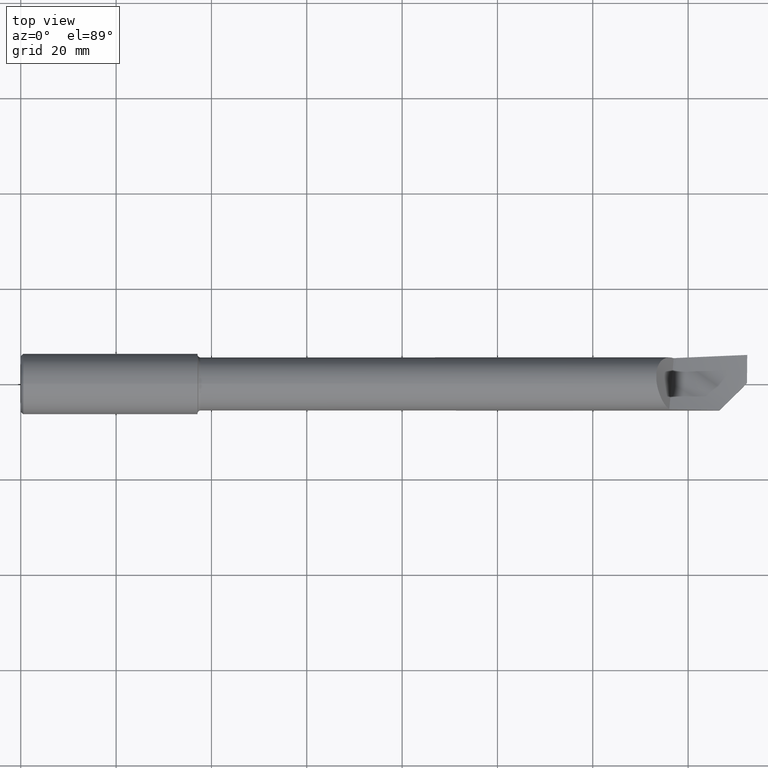
[diagram: clean part render]
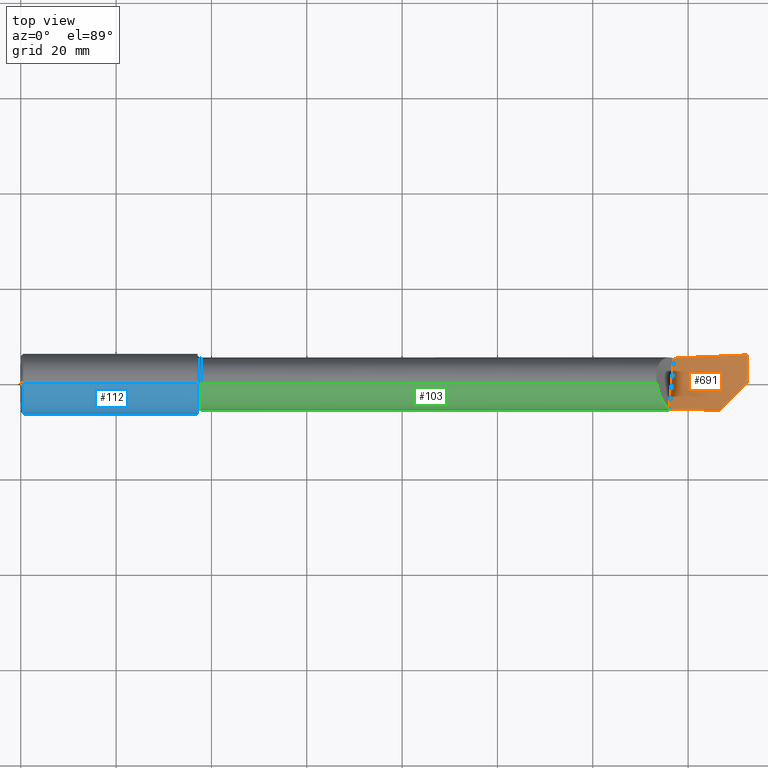
[diagram: same view with three faces highlighted in distinct colors, each labeled with its STEP entity id]
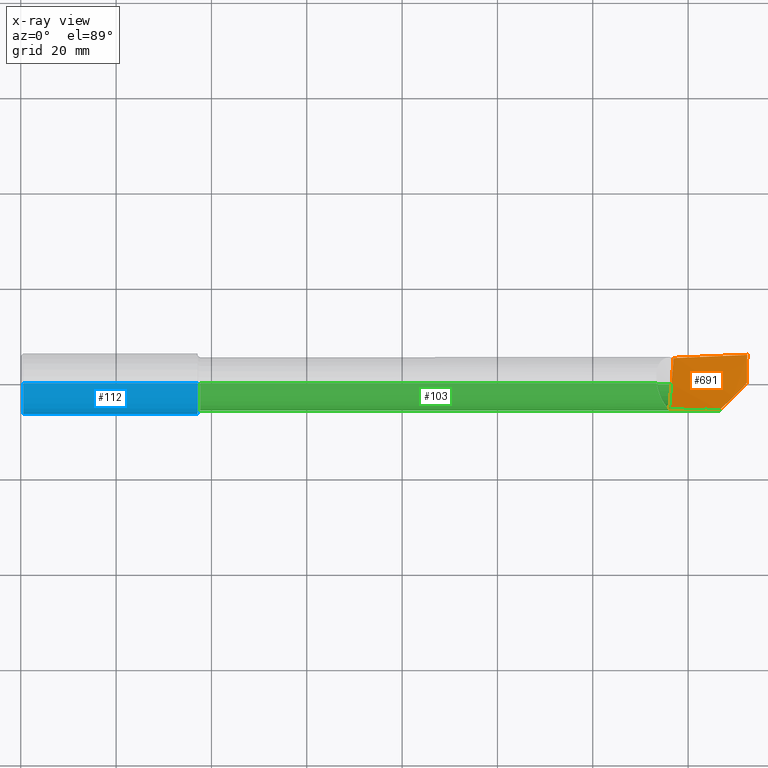
[diagram: x-ray of the same camera — body ghosted, the three highlighted faces saturated]
A machine part, top view with three faces highlighted in distinct colors.
The next image is the same camera in x-ray (body ghosted, the three faces saturated) — at least one of them is partly hidden behind the body in this view.
Their STEP definitions:

[orange] entity #691 — the highlighted face is a freeform B-spline surface patch.
#4 = B_SPLINE_CURVE_WITH_KNOTS ( 'NONE', 3,
 ( #550, #271, #602, #418 ),
 .UNSPECIFIED., .F., .F.,
 ( 4, 4 ),
 ( 0.000000000000000000, 1.000000000000000000 ),
 .UNSPECIFIED. ) ;
#22 = CARTESIAN_POINT ( 'NONE',  ( 5.038461538461540101, 0.1282380153811019941, -0.06570616055808793654 ) ) ;
#67 = ORIENTED_EDGE ( 'NONE', *, *, #404, .F. ) ;
#70 = CARTESIAN_POINT ( 'NONE',  ( 6.000000000000000000, -0.1427725359348056000, -0.004432535825742341291 ) ) ;
#72 = ORIENTED_EDGE ( 'NONE', *, *, #488, .F. ) ;
#74 = CARTESIAN_POINT ( 'NONE',  ( 6.000000000000000888, 0.2402499999999999636, 0.000000000000000000 ) ) ;
#87 = FACE_OUTER_BOUND ( 'NONE', #300, .T. ) ;
#94 = CARTESIAN_POINT ( 'NONE',  ( 5.356559098504063421, -0.2088777642239236787, 0.06906576061805669298 ) ) ;
#110 = CARTESIAN_POINT ( 'NONE',  ( 4.717948717948720727, 0.3831985670997781201, -0.1862012283307211968 ) ) ;
#141 = CARTESIAN_POINT ( 'NONE',  ( 5.997941307501979402, 0.009589154693349864408, -0.0003725554249013883251 ) ) ;
#145 = CARTESIAN_POINT ( 'NONE',  ( 5.357725844419114480, -0.2089080893730916877, 0.06897406050240388609 ) ) ;
#179 = EDGE_CURVE ( 'NONE', #738, #471, #246, .T. ) ;
#184 = CARTESIAN_POINT ( 'NONE',  ( 5.392944745247168825, 0.2140968924730454748, -0.05062134562993383935 ) ) ;
#190 = CARTESIAN_POINT ( 'NONE',  ( 6.000000000000000888, -0.4232169687476833864, 0.04721891282440422027 ) ) ;
#192 = ORIENTED_EDGE ( 'NONE', *, *, #648, .T. ) ;
#195 = CARTESIAN_POINT ( 'NONE',  ( 5.612381827555388725, 0.2257843348541586359, -0.03415235492858138128 ) ) ;
#196 = CARTESIAN_POINT ( 'NONE',  ( 5.392944745247168825, 0.2140968924730454748, -0.05062134562993383935 ) ) ;
#201 = CARTESIAN_POINT ( 'NONE',  ( 5.358974358974360364, -0.3996188273119117840, 0.1471292670482277631 ) ) ;
#206 = CARTESIAN_POINT ( 'NONE',  ( 5.679487179487181514, -0.4174835547069452035, 0.09860675650306138795 ) ) ;
#208 = CARTESIAN_POINT ( 'NONE',  ( 5.410000000000001918, 0.2144189151190963594, -0.04923950486296321122 ) ) ;
#246 = B_SPLINE_CURVE_WITH_KNOTS ( 'NONE', 3,
 ( #652, #710, #195, #478 ),
 .UNSPECIFIED., .F., .F.,
 ( 4, 4 ),
 ( 1.235384741098576477E-19, 0.01483563987091332179 ),
 .UNSPECIFIED. ) ;
#248 = CARTESIAN_POINT ( 'NONE',  ( 5.358974358974360364, -0.1396846007746824214, 0.02986396988880485326 ) ) ;
#258 = CARTESIAN_POINT ( 'NONE',  ( 5.679487179487179738, -0.1433107432254709379, 0.01290318863713321371 ) ) ;
#267 = CARTESIAN_POINT ( 'NONE',  ( 5.846075425691751981, -0.1422767271168796921, 0.01425986872581068779 ) ) ;
#271 = CARTESIAN_POINT ( 'NONE',  ( 5.380960247964670984, 0.07009182744065016457, -0.02311703390389483956 ) ) ;
#274 = CARTESIAN_POINT ( 'NONE',  ( 5.418486830548875588, 0.2160475044874685668, -0.04882782362294692258 ) ) ;
#300 = EDGE_LOOP ( 'NONE', ( #67, #593, #72, #533, #192, #685, #322 ) ) ;
#303 = CARTESIAN_POINT ( 'NONE',  ( 5.410000000000001918, 0.2144189151190963594, -0.04923950486296321122 ) ) ;
#306 = CARTESIAN_POINT ( 'NONE',  ( 5.564429700643780841, -0.2143015012764733496, 0.05261254719292928622 ) ) ;
#318 = CARTESIAN_POINT ( 'NONE',  ( 5.358974358974360364, 0.4166243838240432651, -0.08908513940287006438 ) ) ;
#322 = ORIENTED_EDGE ( 'NONE', *, *, #346, .F. ) ;
#342 = VERTEX_POINT ( 'NONE', #208 ) ;
#343 = CARTESIAN_POINT ( 'NONE',  ( 5.997941307501979402, 0.009589154693349864408, -0.0003725554249013883251 ) ) ;
#346 = EDGE_CURVE ( 'NONE', #745, #407, #699, .T. ) ;
#355 = EDGE_CURVE ( 'NONE', #407, #383, #733, .T. ) ;
#357 = CARTESIAN_POINT ( 'NONE',  ( 4.717948717948720727, -0.3527962921881071523, 0.2384890030643342096 ) ) ;
#367 = CARTESIAN_POINT ( 'NONE',  ( 4.717948717948720727, -0.1284787043503996806, 0.06242489022452848979 ) ) ;
#373 = CARTESIAN_POINT ( 'NONE',  ( 5.679487179487181514, 0.4274412781259713245, -0.03849778046020245481 ) ) ;
#383 = VERTEX_POINT ( 'NONE', #433 ) ;
#387 =( BOUNDED_CURVE ( )  B_SPLINE_CURVE ( 2, ( #196, #727, #303 ),
 .UNSPECIFIED., .F., .T. ) 
 B_SPLINE_CURVE_WITH_KNOTS ( ( 3, 3 ),
 ( 0.5266614230579070854, 0.5400257304258038182 ),
 .UNSPECIFIED. ) 
 CURVE ( )  GEOMETRIC_REPRESENTATION_ITEM ( )  RATIONAL_B_SPLINE_CURVE ( ( 0.9955652346528230945, 0.9953917806560829140, 0.9952287059344252507 ) ) 
 REPRESENTATION_ITEM ( '' )  );
#404 = EDGE_CURVE ( 'NONE', #738, #745, #641, .T. ) ;
#407 = VERTEX_POINT ( 'NONE', #444 ) ;
#418 = CARTESIAN_POINT ( 'NONE',  ( 5.356559098504063421, -0.2088777642239236787, 0.06906576061805669298 ) ) ;
#426 = CARTESIAN_POINT ( 'NONE',  ( 5.998256711176780165, 0.08645143747529157596, -0.003266647090703719402 ) ) ;
#433 = CARTESIAN_POINT ( 'NONE',  ( 5.356559098504063421, -0.2088777642239236787, 0.06906576061805669298 ) ) ;
#443 =( BOUNDED_SURFACE ( )  B_SPLINE_SURFACE ( 3, 2, ( 
 ( #190, #206, #201, #595, #357 ),
 ( #70, #258, #248, #485, #367 ),
 ( #555, #715, #607, #22, #497 ),
 ( #671, #373, #318, #559, #110 ) ),
 .UNSPECIFIED., .F., .F., .T. ) 
 B_SPLINE_SURFACE_WITH_KNOTS ( ( 4, 4 ),
 ( 3, 2, 3 ),
 ( 0.000000000000000000, 1.000000000000000000 ),
 ( 0.000000000000000000, 0.5000000000000000000, 1.000000000000000000 ),
 .UNSPECIFIED. ) 
 GEOMETRIC_REPRESENTATION_ITEM ( )  RATIONAL_B_SPLINE_SURFACE ( (
 ( 1.000000000000000000, 0.9927088740980539727, 1.000000000000000000, 0.9927088740980539727, 1.000000000000000000),
 ( 0.9932804858608129672, 0.9860383527824556626, 0.9932804858608129672, 0.9860383527824556626, 0.9932804858608129672),
 ( 0.9932804858608129672, 0.9860383527824556626, 0.9932804858608129672, 0.9860383527824556626, 0.9932804858608129672),
 ( 1.000000000000000000, 0.9927088740980539727, 1.000000000000000000, 0.9927088740980539727, 1.000000000000000000) ) ) 
 REPRESENTATION_ITEM ( '' )  SURFACE ( )  );
#444 = CARTESIAN_POINT ( 'NONE',  ( 5.771270714435558169, -0.2170814383730695907, 0.03571623039850650716 ) ) ;
#471 = VERTEX_POINT ( 'NONE', #482 ) ;
#478 = CARTESIAN_POINT ( 'NONE',  ( 5.418486830548875588, 0.2160475044874685668, -0.04882782362294692258 ) ) ;
#482 = CARTESIAN_POINT ( 'NONE',  ( 5.418486830548875588, 0.2160475044874685668, -0.04882782362294692258 ) ) ;
#485 = CARTESIAN_POINT ( 'NONE',  ( 5.038461538461540101, -0.1360584583238938217, 0.04682475114047649628 ) ) ;
#487 = CARTESIAN_POINT ( 'NONE',  ( 5.998938641188132692, 0.1633380998407390761, -0.003177467661418153112 ) ) ;
#488 = EDGE_CURVE ( 'NONE', #342, #471, #532, .T. ) ;
#497 = CARTESIAN_POINT ( 'NONE',  ( 4.717948717948720727, 0.1185125768182977157, -0.08009619267214614091 ) ) ;
#505 = CARTESIAN_POINT ( 'NONE',  ( 5.771270714435558169, -0.2170814383730695907, 0.03571623039850650716 ) ) ;
#522 = CARTESIAN_POINT ( 'NONE',  ( 5.412829028078361304, 0.2149618471159617794, -0.04910401580184040049 ) ) ;
#532 = B_SPLINE_CURVE_WITH_KNOTS ( 'NONE', 3,
 ( #742, #522, #757, #274 ),
 .UNSPECIFIED., .F., .F.,
 ( 4, 4 ),
 ( 0.000000000000000000, 0.0002197412204929500385 ),
 .UNSPECIFIED. ) ;
#533 = ORIENTED_EDGE ( 'NONE', *, *, #623, .F. ) ;
#550 = CARTESIAN_POINT ( 'NONE',  ( 5.392944745247168825, 0.2140968924730454748, -0.05062134562993383935 ) ) ;
#553 = CARTESIAN_POINT ( 'NONE',  ( 5.771270714435558169, -0.2170814383730695907, 0.03571623039850650716 ) ) ;
#555 = CARTESIAN_POINT ( 'NONE',  ( 6.000000000000000000, 0.1421602319866792363, -0.01584611580735217559 ) ) ;
#559 = CARTESIAN_POINT ( 'NONE',  ( 5.038461538461542766, 0.4058074895221152611, -0.1396724983455376601 ) ) ;
#570 = CARTESIAN_POINT ( 'NONE',  ( 5.358974358974359475, -0.2089406661879938953, 0.06887523512059523512 ) ) ;
#579 = CARTESIAN_POINT ( 'NONE',  ( 6.000000000000000888, 0.2402499999999999636, 0.000000000000000000 ) ) ;
#590 = VERTEX_POINT ( 'NONE', #184 ) ;
#593 = ORIENTED_EDGE ( 'NONE', *, *, #179, .T. ) ;
#595 = CARTESIAN_POINT ( 'NONE',  ( 5.038461538461542766, -0.3817540999168784754, 0.1956517775933941383 ) ) ;
#602 = CARTESIAN_POINT ( 'NONE',  ( 5.368992473848769542, -0.07181561011661122262, 0.01702505518877546822 ) ) ;
#607 = CARTESIAN_POINT ( 'NONE',  ( 5.358974358974360364, 0.1342370902800414656, -0.04940682683429966499 ) ) ;
#623 = EDGE_CURVE ( 'NONE', #590, #342, #387, .T. ) ;
#641 = B_SPLINE_CURVE_WITH_KNOTS ( 'NONE', 3,
 ( #74, #487, #426, #141 ),
 .UNSPECIFIED., .F., .F.,
 ( 4, 4 ),
 ( 3.946659672217948877E-16, 0.005858684638792336155 ),
 .UNSPECIFIED. ) ;
#648 = EDGE_CURVE ( 'NONE', #590, #383, #4, .T. ) ;
#652 = CARTESIAN_POINT ( 'NONE',  ( 6.000000000000000888, 0.2402499999999999636, 0.000000000000000000 ) ) ;
#658 = CARTESIAN_POINT ( 'NONE',  ( 5.921631811082999519, -0.06672034172563119647, 0.002224270572585796465 ) ) ;
#671 = CARTESIAN_POINT ( 'NONE',  ( 6.000000000000000888, 0.4258375057284731757, 0.01320825401576949422 ) ) ;
#685 = ORIENTED_EDGE ( 'NONE', *, *, #355, .F. ) ;
#691 = ADVANCED_FACE ( 'NONE', ( #87 ), #443, .T. ) ;
#699 = B_SPLINE_CURVE_WITH_KNOTS ( 'NONE', 3,
 ( #724, #658, #267, #505 ),
 .UNSPECIFIED., .F., .F.,
 ( 4, 4 ),
 ( 7.367693421349575105E-05, 0.008267352743947888050 ),
 .UNSPECIFIED. ) ;
#710 = CARTESIAN_POINT ( 'NONE',  ( 5.806231657992949380, 0.2339654237526884728, -0.01788766252031758278 ) ) ;
#715 = CARTESIAN_POINT ( 'NONE',  ( 5.679487179487179738, 0.1402361651789809094, -0.03310749311051140731 ) ) ;
#724 = CARTESIAN_POINT ( 'NONE',  ( 5.997941307501979402, 0.009589154693349864408, -0.0003725554249013883251 ) ) ;
#727 = CARTESIAN_POINT ( 'NONE',  ( 5.401469481609320944, 0.2142601318164513158, -0.04993094446185701585 ) ) ;
#733 =( BOUNDED_CURVE ( )  B_SPLINE_CURVE ( 2, ( #553, #306, #570, #145, #94 ),
 .UNSPECIFIED., .F., .T. ) 
 B_SPLINE_CURVE_WITH_KNOTS ( ( 3, 2, 3 ),
 ( 0.1786485734947638737, 0.5000000000000000000, 0.5019619316750385529 ),
 .UNSPECIFIED. ) 
 CURVE ( )  GEOMETRIC_REPRESENTATION_ITEM ( )  RATIONAL_B_SPLINE_CURVE ( ( 0.9929648280793842430, 0.9916323561610862480, 0.9963010501997406898, 0.9962725466427000409, 0.9962442667737849700 ) ) 
 REPRESENTATION_ITEM ( '' )  );
#738 = VERTEX_POINT ( 'NONE', #579 ) ;
#742 = CARTESIAN_POINT ( 'NONE',  ( 5.410000000000001918, 0.2144189151190963594, -0.04923950486296321122 ) ) ;
#745 = VERTEX_POINT ( 'NONE', #343 ) ;
#757 = CARTESIAN_POINT ( 'NONE',  ( 5.415657971079504307, 0.2155047129925782845, -0.04896678893848467606 ) ) ;

[blue] entity #112 — the highlighted cylindrical surface (edge-blend (fillet) strip) has radius 6.3462 mm, axis along (-1, -0, -0).
#15 = DIRECTION ( 'NONE',  ( -1.000000000000000000, -0.000000000000000000, -0.000000000000000000 ) ) ;
#23 = DIRECTION ( 'NONE',  ( -1.000000000000000000, -0.000000000000000000, -0.000000000000000000 ) ) ;
#29 = CYLINDRICAL_SURFACE ( 'NONE', #643, 0.2498499999999999888 ) ;
#56 = VECTOR ( 'NONE', #131, 39.37007874015748143 ) ;
#100 = ORIENTED_EDGE ( 'NONE', *, *, #642, .F. ) ;
#102 = CARTESIAN_POINT ( 'NONE',  ( 1.459525038226270333, 0.000000000000000000, 0.2498499999999999888 ) ) ;
#108 = CARTESIAN_POINT ( 'NONE',  ( 1.459525038226270333, 3.059780027669661931E-17, -0.2498499999999999888 ) ) ;
#112 = ADVANCED_FACE ( 'NONE', ( #556 ), #29, .T. ) ;
#124 = EDGE_CURVE ( 'NONE', #705, #391, #148, .T. ) ;
#131 = DIRECTION ( 'NONE',  ( -1.000000000000000000, -0.000000000000000000, -0.000000000000000000 ) ) ;
#134 = EDGE_LOOP ( 'NONE', ( #577, #755, #495, #100 ) ) ;
#147 = LINE ( 'NONE', #441, #56 ) ;
#148 = LINE ( 'NONE', #620, #213 ) ;
#156 = CIRCLE ( 'NONE', #185, 0.2498499999999999888 ) ;
#185 = AXIS2_PLACEMENT_3D ( 'NONE', #676, #15, #721 ) ;
#207 = CARTESIAN_POINT ( 'NONE',  ( 0.000000000000000000, 0.000000000000000000, 0.000000000000000000 ) ) ;
#213 = VECTOR ( 'NONE', #499, 39.37007874015748143 ) ;
#249 = CIRCLE ( 'NONE', #386, 0.2498499999999999888 ) ;
#297 = VERTEX_POINT ( 'NONE', #578 ) ;
#324 = DIRECTION ( 'NONE',  ( 1.000000000000000000, 0.000000000000000000, 0.000000000000000000 ) ) ;
#375 = DIRECTION ( 'NONE',  ( 0.000000000000000000, 0.000000000000000000, 1.000000000000000000 ) ) ;
#386 = AXIS2_PLACEMENT_3D ( 'NONE', #541, #324, #568 ) ;
#391 = VERTEX_POINT ( 'NONE', #600 ) ;
#441 = CARTESIAN_POINT ( 'NONE',  ( 0.000000000000000000, 3.059780027669661931E-17, -0.2498499999999999888 ) ) ;
#495 = ORIENTED_EDGE ( 'NONE', *, *, #124, .T. ) ;
#499 = DIRECTION ( 'NONE',  ( -1.000000000000000000, -0.000000000000000000, -0.000000000000000000 ) ) ;
#529 = VERTEX_POINT ( 'NONE', #108 ) ;
#541 = CARTESIAN_POINT ( 'NONE',  ( 1.459525038226270333, 0.000000000000000000, 0.000000000000000000 ) ) ;
#556 = FACE_OUTER_BOUND ( 'NONE', #134, .T. ) ;
#568 = DIRECTION ( 'NONE',  ( 0.000000000000000000, 0.000000000000000000, -1.000000000000000000 ) ) ;
#577 = ORIENTED_EDGE ( 'NONE', *, *, #632, .F. ) ;
#578 = CARTESIAN_POINT ( 'NONE',  ( 0.02000000000000000042, 3.059780027669661931E-17, -0.2498499999999999888 ) ) ;
#600 = CARTESIAN_POINT ( 'NONE',  ( 0.02000000000000000042, 0.000000000000000000, 0.2498499999999999888 ) ) ;
#620 = CARTESIAN_POINT ( 'NONE',  ( 0.000000000000000000, 0.000000000000000000, 0.2498499999999999888 ) ) ;
#632 = EDGE_CURVE ( 'NONE', #529, #297, #147, .T. ) ;
#642 = EDGE_CURVE ( 'NONE', #297, #391, #156, .T. ) ;
#643 = AXIS2_PLACEMENT_3D ( 'NONE', #207, #23, #375 ) ;
#644 = EDGE_CURVE ( 'NONE', #705, #529, #249, .T. ) ;
#676 = CARTESIAN_POINT ( 'NONE',  ( 0.02000000000000000042, 0.000000000000000000, 0.000000000000000000 ) ) ;
#705 = VERTEX_POINT ( 'NONE', #102 ) ;
#721 = DIRECTION ( 'NONE',  ( 0.000000000000000000, 0.000000000000000000, 1.000000000000000000 ) ) ;
#755 = ORIENTED_EDGE ( 'NONE', *, *, #644, .F. ) ;

[green] entity #103 — the highlighted cylindrical surface (edge-blend (fillet) strip) has radius 5.588 mm, axis along (-1, -0, -0).
#6 = ORIENTED_EDGE ( 'NONE', *, *, #374, .T. ) ;
#9 = CARTESIAN_POINT ( 'NONE',  ( 5.283226719027450891, -0.1059187799789718248, 0.1929277633858645646 ) ) ;
#10 = ORIENTED_EDGE ( 'NONE', *, *, #344, .F. ) ;
#11 = CARTESIAN_POINT ( 'NONE',  ( 5.970822649411937633, -0.01752950339669020682, -0.2193005164395777362 ) ) ;
#14 = CARTESIAN_POINT ( 'NONE',  ( 5.256435488265876366, -0.02101578052564987212, 0.2199999835917510471 ) ) ;
#25 = DIRECTION ( 'NONE',  ( 0.000000000000000000, 0.000000000000000000, 1.000000000000000000 ) ) ;
#26 = CARTESIAN_POINT ( 'NONE',  ( 5.293395547304614368, -0.1282223768002896391, 0.1787856457334581206 ) ) ;
#34 = DIRECTION ( 'NONE',  ( -1.000000000000000000, -0.000000000000000000, -0.000000000000000000 ) ) ;
#35 = CARTESIAN_POINT ( 'NONE',  ( 5.771270714435558169, -0.2170814383730695907, 0.03571623039850650716 ) ) ;
#54 =( BOUNDED_CURVE ( )  B_SPLINE_CURVE ( 3, ( #35, #256, #669, #187 ),
 .UNSPECIFIED., .F., .T. ) 
 B_SPLINE_CURVE_WITH_KNOTS ( ( 4, 4 ),
 ( 6.120117067556848589, 7.774217519258906250 ),
 .UNSPECIFIED. ) 
 CURVE ( )  GEOMETRIC_REPRESENTATION_ITEM ( )  RATIONAL_B_SPLINE_CURVE ( ( 1.000000000000000000, 0.7846997011302692115, 0.7846997011302692115, 1.000000000000000000 ) ) 
 REPRESENTATION_ITEM ( '' )  );
#60 = VERTEX_POINT ( 'NONE', #212 ) ;
#69 = DIRECTION ( 'NONE',  ( -1.000000000000000000, -0.000000000000000000, -0.000000000000000000 ) ) ;
#79 = CARTESIAN_POINT ( 'NONE',  ( 5.533631329113467778, -0.007501773097099858310, -0.2200000000000000011 ) ) ;
#94 = CARTESIAN_POINT ( 'NONE',  ( 5.356559098504063421, -0.2088777642239236787, 0.06906576061805669298 ) ) ;
#103 = ADVANCED_FACE ( 'NONE', ( #677 ), #667, .T. ) ;
#107 = CIRCLE ( 'NONE', #498, 0.2200000000000000011 ) ;
#120 = CARTESIAN_POINT ( 'NONE',  ( 5.272414265991219651, -0.07762841386096502871, 0.2061942163186600840 ) ) ;
#125 = CARTESIAN_POINT ( 'NONE',  ( 5.301763750540529507, -0.1449087477148439662, 0.1665523849273789492 ) ) ;
#129 = CARTESIAN_POINT ( 'NONE',  ( 1.484525038226270244, 0.000000000000000000, 0.000000000000000000 ) ) ;
#130 = CARTESIAN_POINT ( 'NONE',  ( 5.253048836201133831, -1.183062825525345383E-06, 0.2200124226379089887 ) ) ;
#138 = CARTESIAN_POINT ( 'NONE',  ( 5.292376002346411035, -0.1261431576479110639, 0.1802597226350352022 ) ) ;
#139 = CARTESIAN_POINT ( 'NONE',  ( 0.000000000000000000, 0.000000000000000000, 0.000000000000000000 ) ) ;
#145 = CARTESIAN_POINT ( 'NONE',  ( 5.357725844419114480, -0.2089080893730916877, 0.06897406050240388609 ) ) ;
#171 = CARTESIAN_POINT ( 'NONE',  ( 5.410000000000000142, 0.000000000000000000, -0.2200000000000000566 ) ) ;
#178 = ORIENTED_EDGE ( 'NONE', *, *, #362, .F. ) ;
#181 = B_SPLINE_CURVE_WITH_KNOTS ( 'NONE', 3,
 ( #664, #365, #79, #376 ),
 .UNSPECIFIED., .F., .F.,
 ( 4, 4 ),
 ( 0.000000000000000000, 0.004744245821424695857 ),
 .UNSPECIFIED. ) ;
#187 = CARTESIAN_POINT ( 'NONE',  ( 5.970822649411937633, -0.01752950339669020682, -0.2193005164395777362 ) ) ;
#194 = DIRECTION ( 'NONE',  ( -1.000000000000000000, -0.000000000000000000, -0.000000000000000000 ) ) ;
#209 = ORIENTED_EDGE ( 'NONE', *, *, #583, .T. ) ;
#212 = CARTESIAN_POINT ( 'NONE',  ( 5.970889738018302140, 0.000000000000000000, -0.2200000000000000566 ) ) ;
#215 = ORIENTED_EDGE ( 'NONE', *, *, #355, .T. ) ;
#229 = CARTESIAN_POINT ( 'NONE',  ( 5.595439364795532278, 2.134256245050205639E-18, -0.2200000000000000566 ) ) ;
#233 = EDGE_CURVE ( 'NONE', #383, #732, #419, .T. ) ;
#239 = EDGE_CURVE ( 'NONE', #732, #519, #412, .T. ) ;
#243 = CARTESIAN_POINT ( 'NONE',  ( 5.970816303086416532, -0.01169718663061289528, -0.2197667151436271948 ) ) ;
#247 = CARTESIAN_POINT ( 'NONE',  ( 5.970889738018302140, 0.000000000000000000, -0.2200000000000000566 ) ) ;
#250 = ORIENTED_EDGE ( 'NONE', *, *, #233, .T. ) ;
#256 = CARTESIAN_POINT ( 'NONE',  ( 5.748939529771278423, -0.2394126230373500308, -0.1000115783150166415 ) ) ;
#259 =( BOUNDED_CURVE ( )  B_SPLINE_CURVE ( 3, ( #11, #243, #302, #247 ),
 .UNSPECIFIED., .F., .F. ) 
 B_SPLINE_CURVE_WITH_KNOTS ( ( 4, 4 ),
 ( 6.274373815428443635, 6.354137930144020174 ),
 .UNSPECIFIED. ) 
 CURVE ( )  GEOMETRIC_REPRESENTATION_ITEM ( )  RATIONAL_B_SPLINE_CURVE ( ( 1.000000000000000000, 0.9994698774393541152, 0.9994698774393541152, 1.000000000000000000 ) ) 
 REPRESENTATION_ITEM ( '' )  );
#261 = VECTOR ( 'NONE', #713, 39.37007874015748143 ) ;
#262 = CARTESIAN_POINT ( 'NONE',  ( 1.484525038226270244, 2.694222958124177561E-17, -0.2200000000000000566 ) ) ;
#272 = EDGE_CURVE ( 'NONE', #617, #60, #259, .T. ) ;
#299 = CARTESIAN_POINT ( 'NONE',  ( 5.291026367974281719, -0.1233195885780081907, 0.1821875986796213653 ) ) ;
#302 = CARTESIAN_POINT ( 'NONE',  ( 5.970838677816553641, -0.005850919593664221513, -0.2200000000000000011 ) ) ;
#306 = CARTESIAN_POINT ( 'NONE',  ( 5.564429700643780841, -0.2143015012764733496, 0.05261254719292928622 ) ) ;
#312 = CARTESIAN_POINT ( 'NONE',  ( 5.286194494552781009, -0.1128910208792994335, 0.1889741111404006357 ) ) ;
#315 = DIRECTION ( 'NONE',  ( -1.000000000000000000, -0.000000000000000000, -0.000000000000000000 ) ) ;
#344 = EDGE_CURVE ( 'NONE', #456, #396, #673, .T. ) ;
#353 = CARTESIAN_POINT ( 'NONE',  ( 0.000000000000000000, 0.000000000000000000, 0.2200000000000000566 ) ) ;
#355 = EDGE_CURVE ( 'NONE', #407, #383, #733, .T. ) ;
#356 = CARTESIAN_POINT ( 'NONE',  ( 5.291057892820146158, -0.1233858508182268526, 0.1821426667538900979 ) ) ;
#359 = DIRECTION ( 'NONE',  ( 0.000000000000000000, 0.000000000000000000, 1.000000000000000000 ) ) ;
#362 = EDGE_CURVE ( 'NONE', #396, #519, #528, .T. ) ;
#365 = CARTESIAN_POINT ( 'NONE',  ( 5.471819322562021526, -0.01495104440659961002, -0.2196163581689149769 ) ) ;
#366 = CARTESIAN_POINT ( 'NONE',  ( 5.276456940788357031, -0.08905058601311724442, 0.2015679351482878578 ) ) ;
#374 = EDGE_CURVE ( 'NONE', #456, #571, #107, .T. ) ;
#376 = CARTESIAN_POINT ( 'NONE',  ( 5.595439364795532278, 2.134256245050205639E-18, -0.2200000000000000566 ) ) ;
#379 = VECTOR ( 'NONE', #69, 39.37007874015748143 ) ;
#383 = VERTEX_POINT ( 'NONE', #433 ) ;
#392 = ORIENTED_EDGE ( 'NONE', *, *, #402, .F. ) ;
#396 = VERTEX_POINT ( 'NONE', #262 ) ;
#399 = AXIS2_PLACEMENT_3D ( 'NONE', #129, #194, #359 ) ;
#402 = EDGE_CURVE ( 'NONE', #407, #617, #54, .T. ) ;
#407 = VERTEX_POINT ( 'NONE', #444 ) ;
#412 = LINE ( 'NONE', #353, #379 ) ;
#414 = EDGE_CURVE ( 'NONE', #571, #582, #181, .T. ) ;
#419 = B_SPLINE_CURVE_WITH_KNOTS ( 'NONE', 3,
 ( #655, #435, #670, #554, #125, #26, #138, #540, #531, #356, #299, #594, #535, #312, #9, #366, #120, #475, #14, #130 ),
 .UNSPECIFIED., .F., .F.,
 ( 4, 2, 2, 1, 1, 2, 2, 1, 1, 2, 2, 4 ),
 ( 0.000000000000000000, 0.2319181769986998209, 0.4638363539973996419, 0.4928261261222369738, 0.4964498476378415015, 0.4982617083956438209, 0.5000735691534462513, 0.5073210121846650766, 0.5218158982471060581, 0.5797954424968704279, 0.6957545309964027203, 0.9276727079954699695 ),
 .UNSPECIFIED. ) ;
#433 = CARTESIAN_POINT ( 'NONE',  ( 5.356559098504063421, -0.2088777642239236787, 0.06906576061805669298 ) ) ;
#435 = CARTESIAN_POINT ( 'NONE',  ( 5.343568907379043331, -0.2004185357093110631, 0.09466616758537328702 ) ) ;
#444 = CARTESIAN_POINT ( 'NONE',  ( 5.771270714435558169, -0.2170814383730695907, 0.03571623039850650716 ) ) ;
#456 = VERTEX_POINT ( 'NONE', #678 ) ;
#465 = LINE ( 'NONE', #171, #527 ) ;
#475 = CARTESIAN_POINT ( 'NONE',  ( 5.261697773686591084, -0.04351199093201792156, 0.2169691419821596634 ) ) ;
#479 = ORIENTED_EDGE ( 'NONE', *, *, #239, .T. ) ;
#498 = AXIS2_PLACEMENT_3D ( 'NONE', #545, #315, #25 ) ;
#519 = VERTEX_POINT ( 'NONE', #525 ) ;
#525 = CARTESIAN_POINT ( 'NONE',  ( 1.484525038226270244, 0.000000000000000000, 0.2200000000000000566 ) ) ;
#527 = VECTOR ( 'NONE', #612, 39.37007874015748143 ) ;
#528 = CIRCLE ( 'NONE', #399, 0.2200000000000000566 ) ;
#531 = CARTESIAN_POINT ( 'NONE',  ( 5.291167129969539751, -0.1236153981034094074, 0.1819869571867500369 ) ) ;
#535 = CARTESIAN_POINT ( 'NONE',  ( 5.289661220195152502, -0.1204269891560956207, 0.1841250165428706675 ) ) ;
#540 = CARTESIAN_POINT ( 'NONE',  ( 5.291331261531611929, -0.1239598244847264774, 0.1817528458976670203 ) ) ;
#545 = CARTESIAN_POINT ( 'NONE',  ( 5.410000000000000142, 0.000000000000000000, 0.000000000000000000 ) ) ;
#553 = CARTESIAN_POINT ( 'NONE',  ( 5.771270714435558169, -0.2170814383730695907, 0.03571623039850650716 ) ) ;
#554 = CARTESIAN_POINT ( 'NONE',  ( 5.310708596583527452, -0.1601832435777479635, 0.1525009408925927790 ) ) ;
#570 = CARTESIAN_POINT ( 'NONE',  ( 5.358974358974359475, -0.2089406661879938953, 0.06887523512059523512 ) ) ;
#571 = VERTEX_POINT ( 'NONE', #754 ) ;
#582 = VERTEX_POINT ( 'NONE', #229 ) ;
#583 = EDGE_CURVE ( 'NONE', #582, #60, #465, .T. ) ;
#594 = CARTESIAN_POINT ( 'NONE',  ( 5.290623232216534078, -0.1224700767580466365, 0.1827614645761349577 ) ) ;
#599 = AXIS2_PLACEMENT_3D ( 'NONE', #139, #34, #627 ) ;
#612 = DIRECTION ( 'NONE',  ( 1.000000000000000000, -0.000000000000000000, -0.000000000000000000 ) ) ;
#617 = VERTEX_POINT ( 'NONE', #660 ) ;
#621 = CARTESIAN_POINT ( 'NONE',  ( 0.000000000000000000, 2.694222958124177561E-17, -0.2200000000000000566 ) ) ;
#627 = DIRECTION ( 'NONE',  ( 0.000000000000000000, 0.000000000000000000, 1.000000000000000000 ) ) ;
#639 = CARTESIAN_POINT ( 'NONE',  ( 5.253048836201133831, -1.183062825525345383E-06, 0.2200124226379089887 ) ) ;
#645 = ORIENTED_EDGE ( 'NONE', *, *, #272, .F. ) ;
#655 = CARTESIAN_POINT ( 'NONE',  ( 5.356559098504063421, -0.2088777642239236787, 0.06906576061805669298 ) ) ;
#660 = CARTESIAN_POINT ( 'NONE',  ( 5.970822649411937633, -0.01752950339669020682, -0.2193005164395777362 ) ) ;
#664 = CARTESIAN_POINT ( 'NONE',  ( 5.410000000000000142, -0.02232082031225495616, -0.2188647549985790752 ) ) ;
#667 = CYLINDRICAL_SURFACE ( 'NONE', #599, 0.2200000000000000566 ) ;
#669 = CARTESIAN_POINT ( 'NONE',  ( 5.833707386268462969, -0.1546447665401669558, -0.2083403850635354437 ) ) ;
#670 = CARTESIAN_POINT ( 'NONE',  ( 5.331611175002785252, -0.1879456397189687988, 0.1165832106559163139 ) ) ;
#673 = LINE ( 'NONE', #621, #261 ) ;
#677 = FACE_OUTER_BOUND ( 'NONE', #696, .T. ) ;
#678 = CARTESIAN_POINT ( 'NONE',  ( 5.410000000000000142, 2.694222958124177253E-17, -0.2200000000000000011 ) ) ;
#696 = EDGE_LOOP ( 'NONE', ( #10, #6, #711, #209, #645, #392, #215, #250, #479, #178 ) ) ;
#711 = ORIENTED_EDGE ( 'NONE', *, *, #414, .T. ) ;
#713 = DIRECTION ( 'NONE',  ( -1.000000000000000000, -0.000000000000000000, -0.000000000000000000 ) ) ;
#732 = VERTEX_POINT ( 'NONE', #639 ) ;
#733 =( BOUNDED_CURVE ( )  B_SPLINE_CURVE ( 2, ( #553, #306, #570, #145, #94 ),
 .UNSPECIFIED., .F., .T. ) 
 B_SPLINE_CURVE_WITH_KNOTS ( ( 3, 2, 3 ),
 ( 0.1786485734947638737, 0.5000000000000000000, 0.5019619316750385529 ),
 .UNSPECIFIED. ) 
 CURVE ( )  GEOMETRIC_REPRESENTATION_ITEM ( )  RATIONAL_B_SPLINE_CURVE ( ( 0.9929648280793842430, 0.9916323561610862480, 0.9963010501997406898, 0.9962725466427000409, 0.9962442667737849700 ) ) 
 REPRESENTATION_ITEM ( '' )  );
#754 = CARTESIAN_POINT ( 'NONE',  ( 5.410000000000000142, -0.02232082031225495616, -0.2188647549985790752 ) ) ;